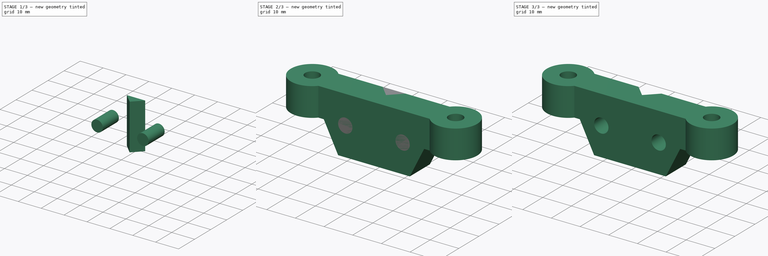
[diagram: build sequence overview — one tinted view per stage of 3, left to right]
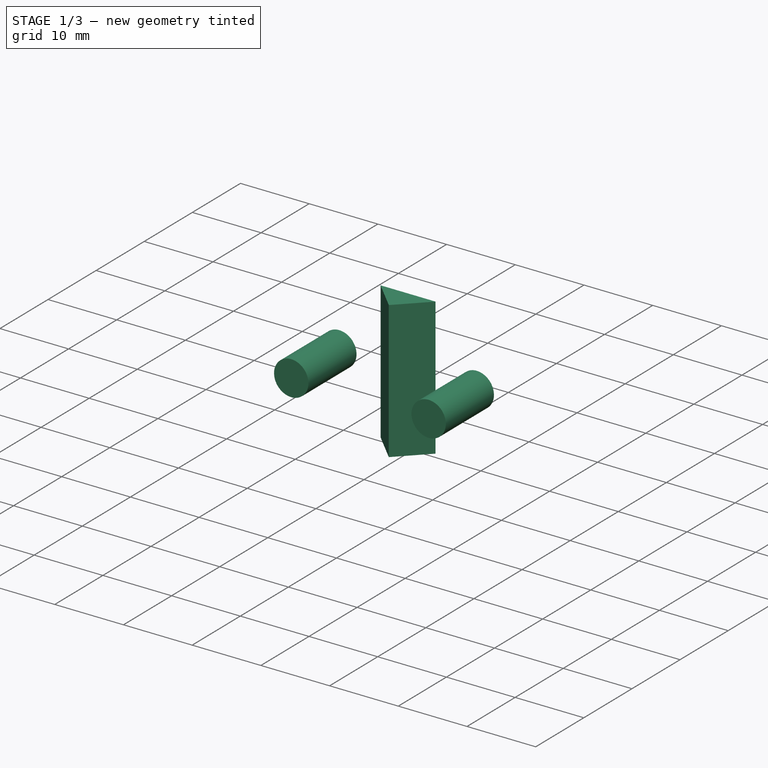
[diagram: stage 1 of 3 — iso view after this stage's code; geometry added in this stage tinted green]
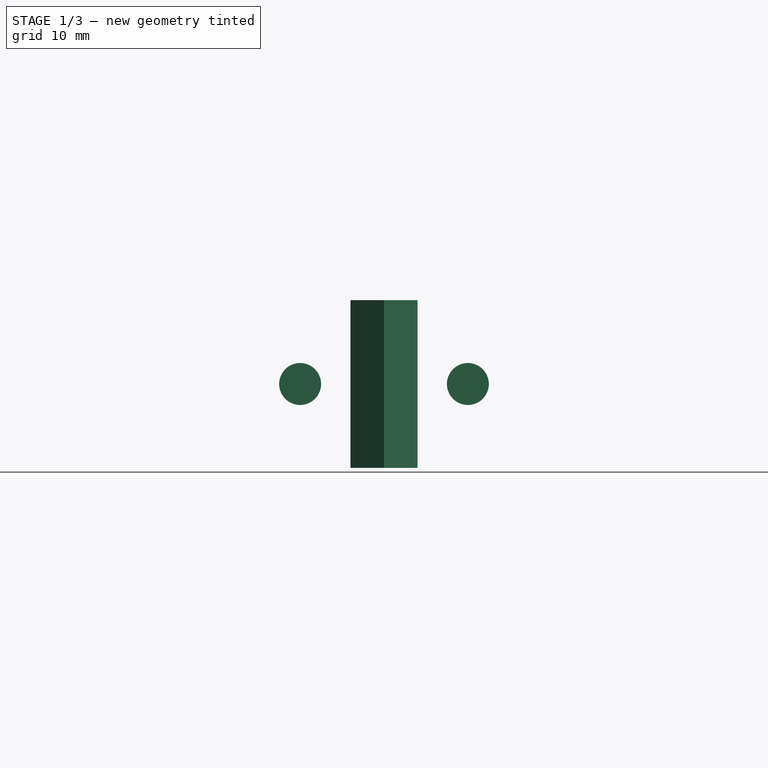
[diagram: stage 1 of 3 — front view after this stage's code; geometry added in this stage tinted green]
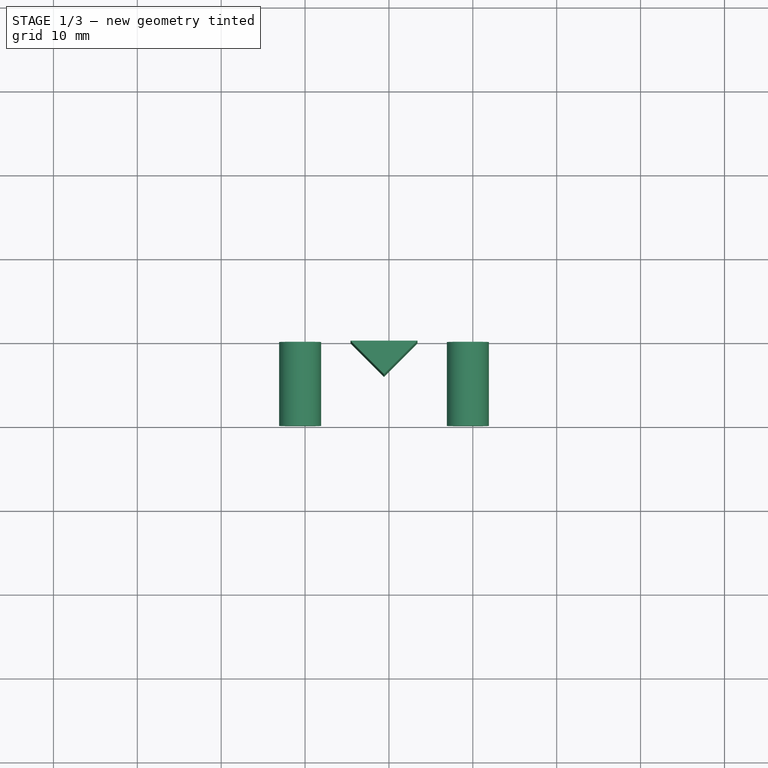
[diagram: stage 1 of 3 — top view after this stage's code; geometry added in this stage tinted green]
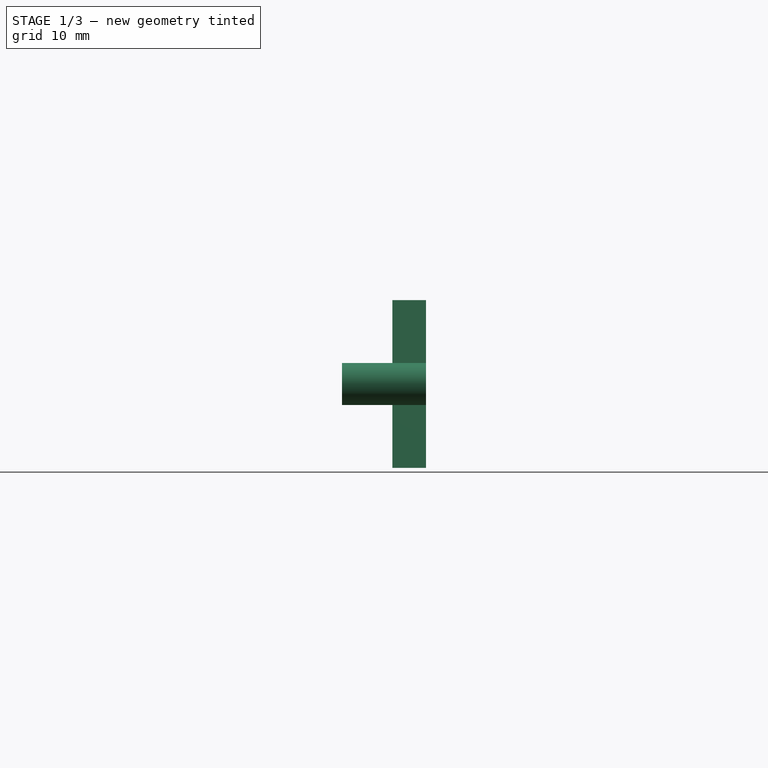
[diagram: stage 1 of 3 — right view after this stage's code; geometry added in this stage tinted green]
FCSTD DOCUMENT  (FreeCAD 1.0R39109 (Git))
Label: pen_attachment_main
License: All rights reserved
LicenseURL: https://en.wikipedia.org/wiki/All_rights_reserved
objects: Sketcher::SketchObject×4, Part::Extrusion×4, Part::Cut×2, Part::MultiFuse×1
note: 15 computed .brp shape members not serialized (recipe doc carries the construction recipe); baked Part::Feature solids carry a one-line shape summary decoded from their .brp

FEATURE [Sketcher::SketchObject] Sketch002
  ArcFitTolerance = 1e-06
  AttachmentOffset = pos=(0,10,0) rot=(0,0,1;0rad)
  AttachmentSupport = -> [Fusion]
  FullyConstrained = true
  MakeInternals = false
  MapMode = 2
  Placement = pos=(0,10,0) rot=(0,0,1;0rad)
  sketch-geometry (3):
    g0: LineSegment StartX=15.41 StartY=0 StartZ=0 EndX=19.41 EndY=-4 EndZ=0
    g1: LineSegment StartX=19.41 StartY=-4 StartZ=0 EndX=23.41 EndY=0 EndZ=0
    g2: LineSegment StartX=15.41 StartY=0 StartZ=0 EndX=23.41 EndY=0 EndZ=0
  constraints (9):
    c: PointOnObject(g0,g-1)
    c: Coincident(g1,g0)
    c: PointOnObject(g1,g-1)
    c: Coincident(g2,g0)
    c: Coincident(g2,g1)
    c: Equal(g0,g1)
    c: Angle(g1,g0) = 1.5708
    c: DistanceY(g0,g-1) = 4
    c: DistanceX(g-1,g0) = 19.41
FEATURE [Part::Extrusion] Extrude002
  Base = -> Sketch002
  Dir = (0,0,1)
  DirMode = 2
  FaceMakerClass = Part::FaceMakerBullseye
  FaceMakerMode = 3
  LengthFwd = 20
  LengthRev = 0
  Solid = true
  Symmetric = true
FEATURE [Sketcher::SketchObject] Sketch003
  ArcFitTolerance = 1e-06
  AttachmentSupport = -> [Cut]
  FullyConstrained = true
  MakeInternals = false
  MapMode = 3
  Placement = pos=(0,0,0) rot=(1,0,0;1.5708rad)
  sketch-geometry (2):
    g0: Circle CenterX=9.41 CenterY=0 CenterZ=0 NormalX=0 NormalY=0 NormalZ=1 AngleXU=0 Radius=2.5
    g1: Circle CenterX=29.41 CenterY=0 CenterZ=0 NormalX=0 NormalY=0 NormalZ=1 AngleXU=0 Radius=2.5
  constraints (6):
    c: Diameter(g0) = 5
    c: Equal(g1,g0)
    c: Horizontal(g0,g1)
    c: DistanceX(g0,g1) = 20
    c: DistanceY(g-1,g0) = 0
    c: DistanceX(g-1,g0) = 9.41
FEATURE [Part::Extrusion] Extrude003
  Base = -> Sketch003
  Dir = (0,-1,2e-16)
  DirMode = 2
  FaceMakerClass = Part::FaceMakerBullseye
  FaceMakerMode = 3
  LengthFwd = 10
  LengthRev = 0
  Reversed = true
  Solid = true
  Symmetric = false
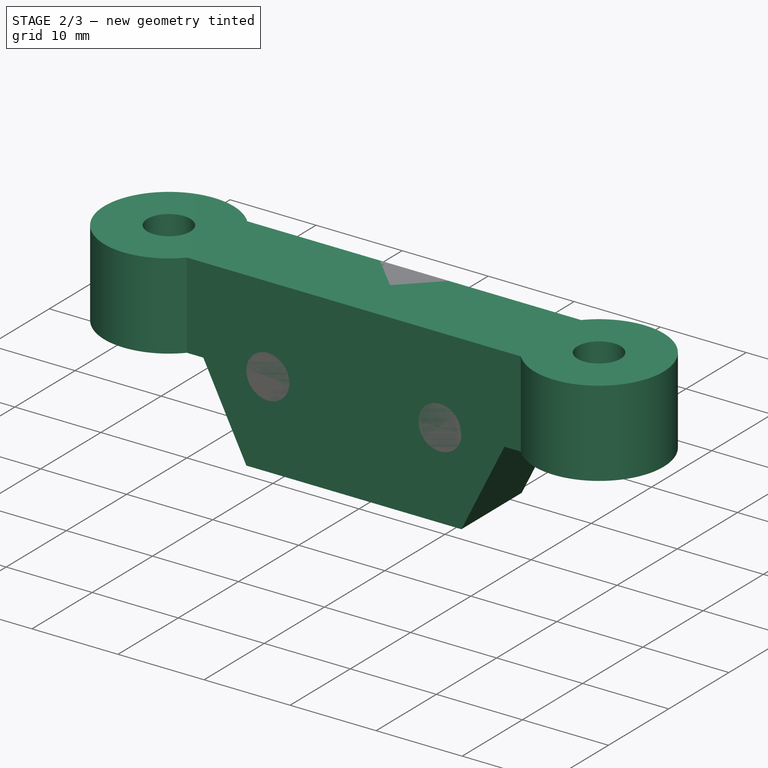
[diagram: stage 2 of 3 — iso view after this stage's code; geometry added in this stage tinted green]
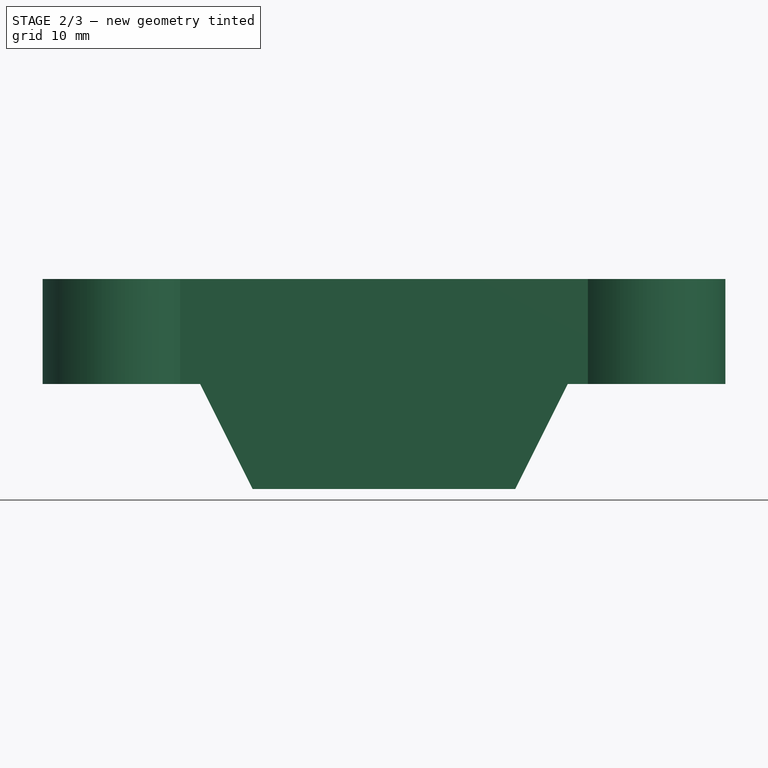
[diagram: stage 2 of 3 — front view after this stage's code; geometry added in this stage tinted green]
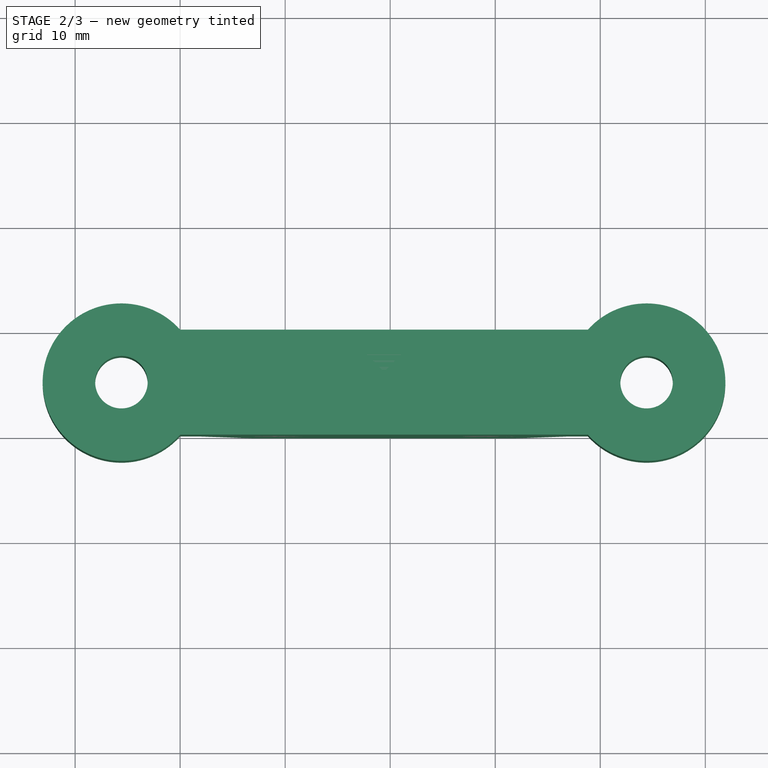
[diagram: stage 2 of 3 — top view after this stage's code; geometry added in this stage tinted green]
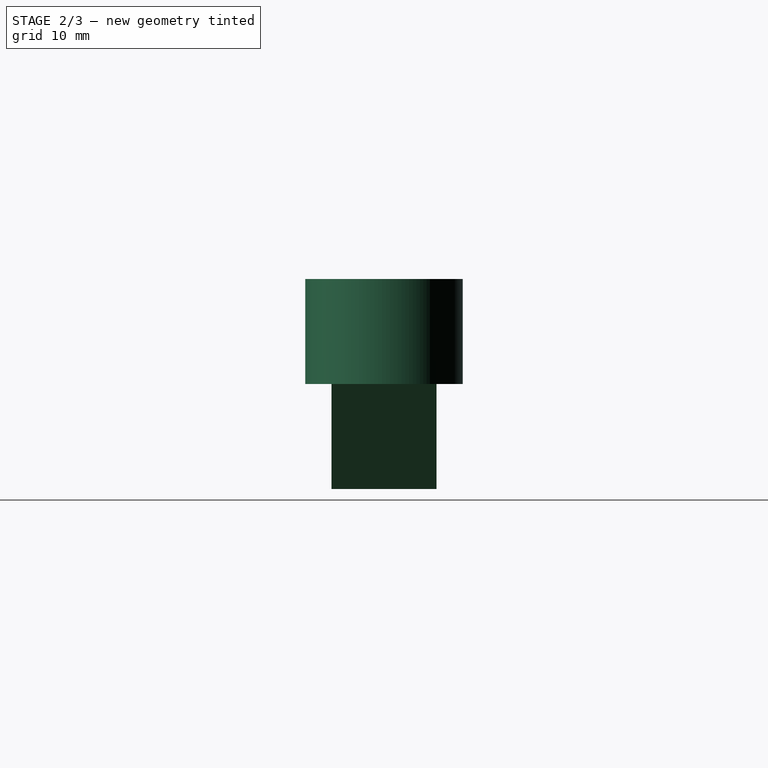
[diagram: stage 2 of 3 — right view after this stage's code; geometry added in this stage tinted green]
FEATURE [Sketcher::SketchObject] Sketch
  ArcFitTolerance = 1e-06
  FullyConstrained = true
  MakeInternals = false
  sketch-geometry (6):
    g0: LineSegment StartX=0 StartY=-9e-16 StartZ=0 EndX=38.8197 EndY=-9e-16 EndZ=0
    g1: LineSegment StartX=38.8197 StartY=10 StartZ=0 EndX=0 EndY=10 EndZ=0
    g2: Circle CenterX=-5.59017 CenterY=5 CenterZ=0 NormalX=0 NormalY=0 NormalZ=1 AngleXU=0 Radius=2.5
    g3: Circle CenterX=44.4098 CenterY=5 CenterZ=0 NormalX=0 NormalY=0 NormalZ=1 AngleXU=0 Radius=2.5
    g4: ArcOfCircle CenterX=-5.59017 CenterY=5 CenterZ=0 NormalX=0 NormalY=0 NormalZ=1 AngleXU=0 Radius=7.5 StartAngle=0.729728 EndAngle=5.55346
    g5: ArcOfCircle CenterX=44.4098 CenterY=5 CenterZ=0 NormalX=0 NormalY=0 NormalZ=1 AngleXU=0 Radius=7.5 StartAngle=3.87132 EndAngle=8.69505
  constraints (17):
    c: Horizontal(g0)
    c: Horizontal(g1)
    c: Diameter(g2) = 5
    c: Diameter(g3) = 5
    c: Diameter(g4) = 15
    c: Coincident(g4,g2)
    c: Diameter(g5) = 15
    c: Coincident(g5,g3)
    c: Coincident(g4,g0)
    c: Coincident(g4,g1)
    c: Coincident(g1,g5)
    c: Coincident(g0,g5)
    c: Equal(g1,g0)
    c: Distance(g0,g1) = 10
    c: DistanceX(g2,g3) = 50
    c: Coincident(g0,g-1)
    c: Vertical(g1,g0)
FEATURE [Part::Extrusion] Extrude
  Base = -> Sketch
  Dir = (0,0,1)
  DirMode = 2
  FaceMakerClass = Part::FaceMakerBullseye
  FaceMakerMode = 3
  LengthFwd = 10
  LengthRev = 0
  Solid = true
  Symmetric = false
FEATURE [Sketcher::SketchObject] Sketch001
  ArcFitTolerance = 1e-06
  AttachmentSupport = -> [Extrude]
  FullyConstrained = true
  MakeInternals = false
  MapMode = 3
  Placement = pos=(0,0,0) rot=(1,0,0;1.5708rad)
  sketch-geometry (4):
    g0: LineSegment StartX=1.91 StartY=0 StartZ=0 EndX=36.91 EndY=0 EndZ=0
    g1: LineSegment StartX=36.91 StartY=0 StartZ=0 EndX=31.91 EndY=-10 EndZ=0
    g2: LineSegment StartX=31.91 StartY=-10 StartZ=0 EndX=6.91 EndY=-10 EndZ=0
    g3: LineSegment StartX=1.91 StartY=0 StartZ=0 EndX=6.91 EndY=-10 EndZ=0
  constraints (12):
    c: PointOnObject(g0,g-1)
    c: PointOnObject(g0,g-1)
    c: Coincident(g1,g0)
    c: Coincident(g2,g1)
    c: Horizontal(g2)
    c: Coincident(g3,g0)
    c: Coincident(g3,g2)
    c: DistanceX(g2,g2) = 25
    c: DistanceX(g0,g0) = 35
    c: Distance(g0,g2) = 10
    c: Equal(g3,g1)
    c: DistanceX(g-1,g0) = 1.91
FEATURE [Part::Extrusion] Extrude001
  Base = -> Sketch001
  Dir = (0,-1,2e-16)
  DirMode = 2
  FaceMakerClass = Part::FaceMakerBullseye
  FaceMakerMode = 3
  LengthFwd = 10
  LengthRev = 0
  Reversed = true
  Solid = true
  Symmetric = false
FEATURE [Part::MultiFuse] Fusion
  Shapes = -> [Extrude,Extrude001]
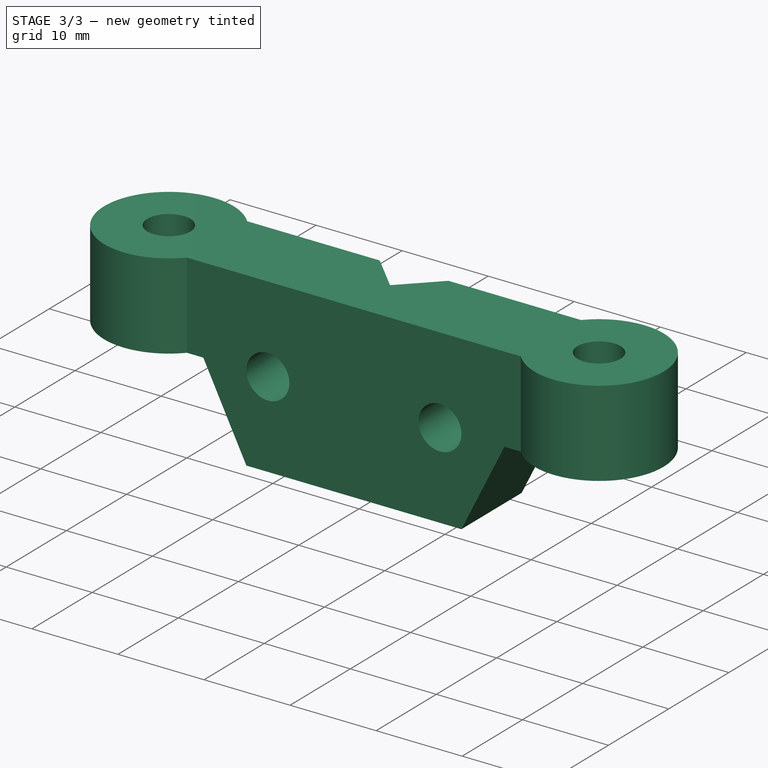
[diagram: stage 3 of 3 — iso view after this stage's code; geometry added in this stage tinted green]
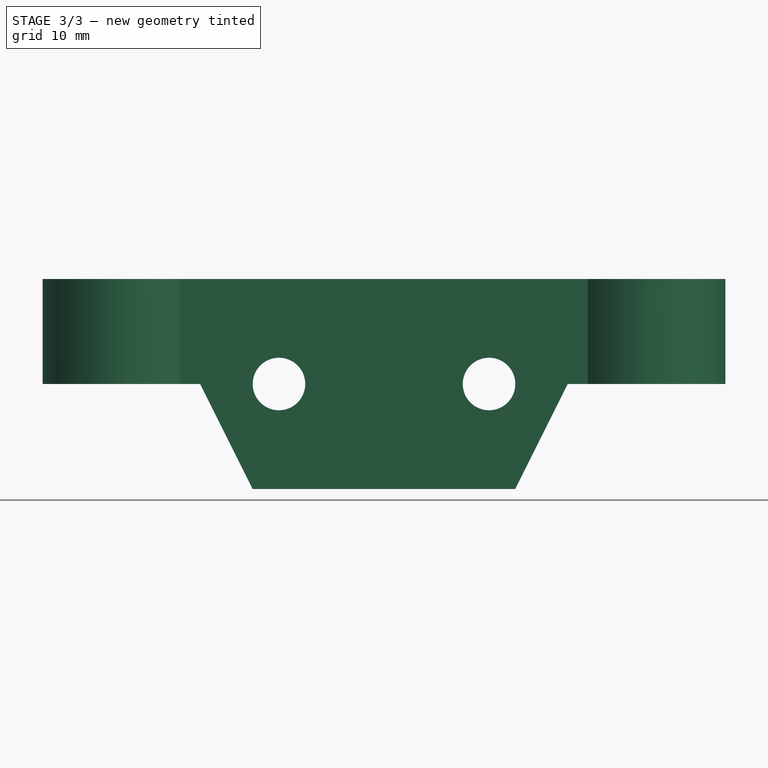
[diagram: stage 3 of 3 — front view after this stage's code; geometry added in this stage tinted green]
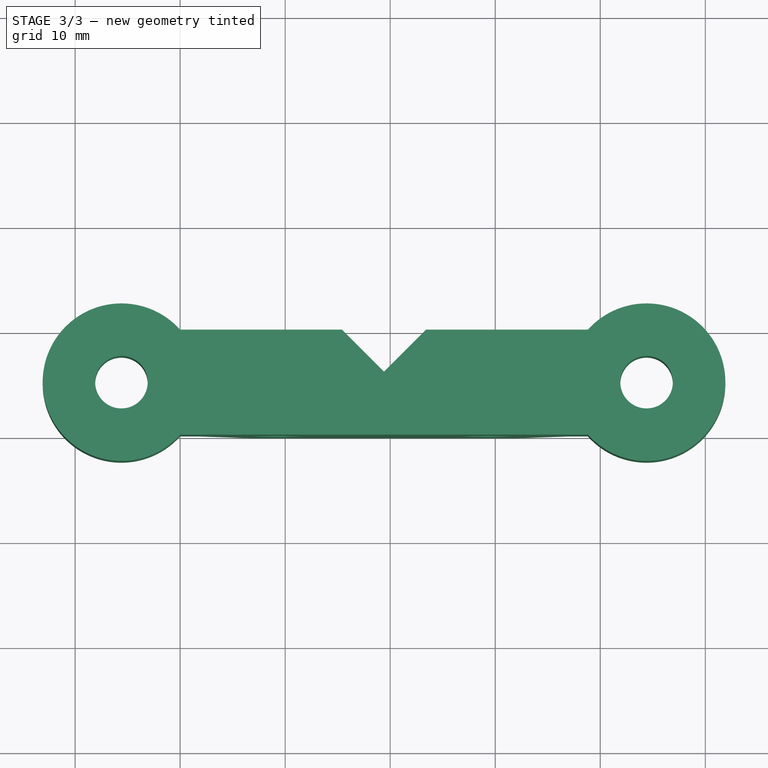
[diagram: stage 3 of 3 — top view after this stage's code; geometry added in this stage tinted green]
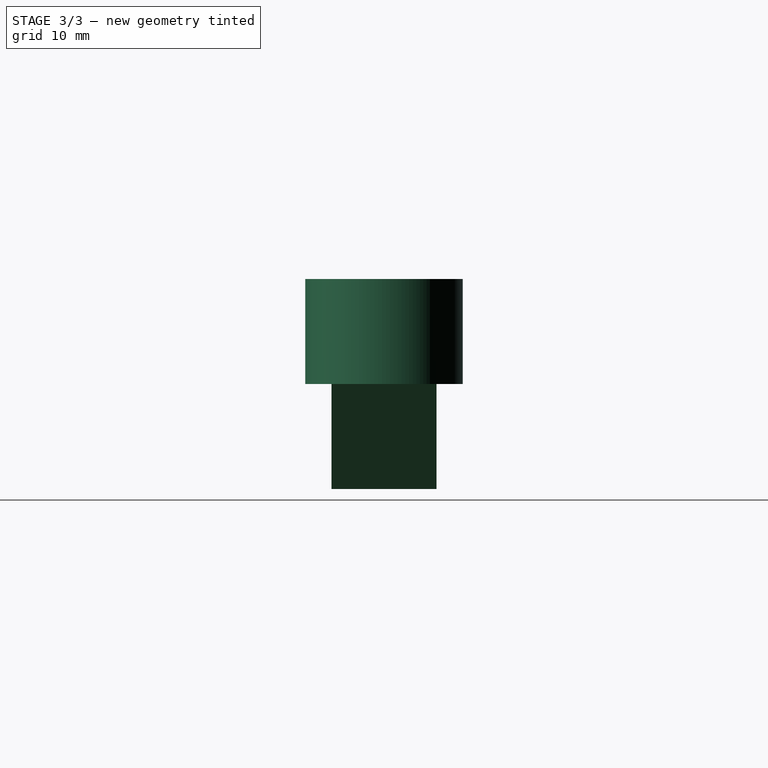
[diagram: stage 3 of 3 — right view after this stage's code; geometry added in this stage tinted green]
FEATURE [Part::Cut] Cut
  Base = -> Fusion
  Tool = -> Extrude002
FEATURE [Part::Cut] Cut001
  Base = -> Cut
  Tool = -> Extrude003
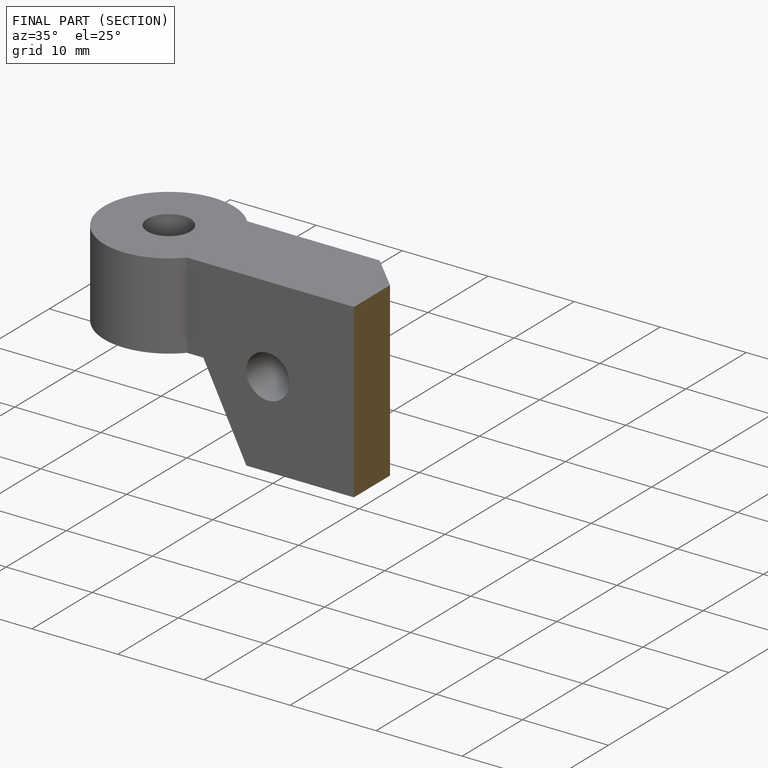
[diagram: finished part — half-section view (interior)]
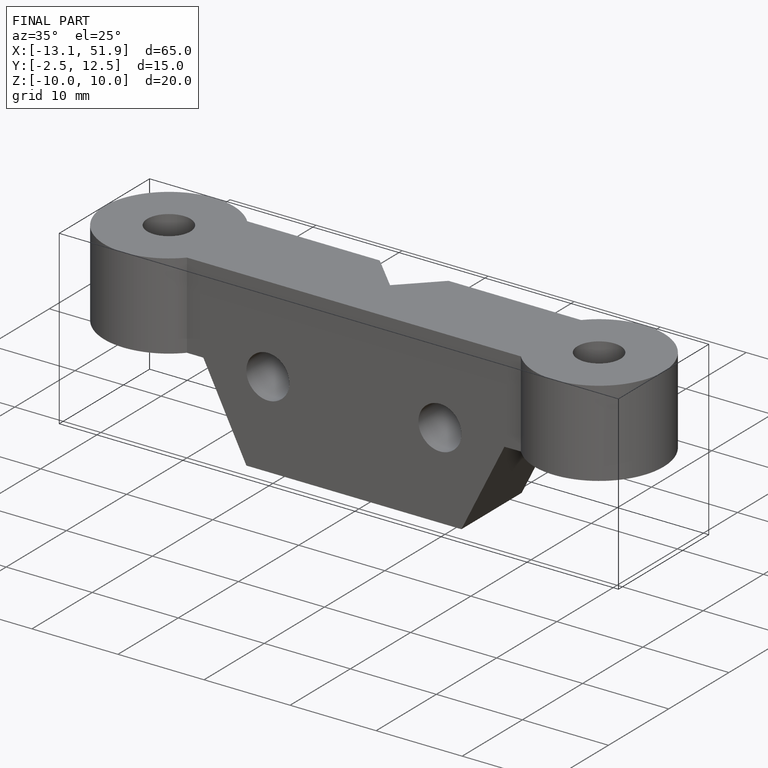
[diagram: finished part — iso view with bounding-box wireframe]
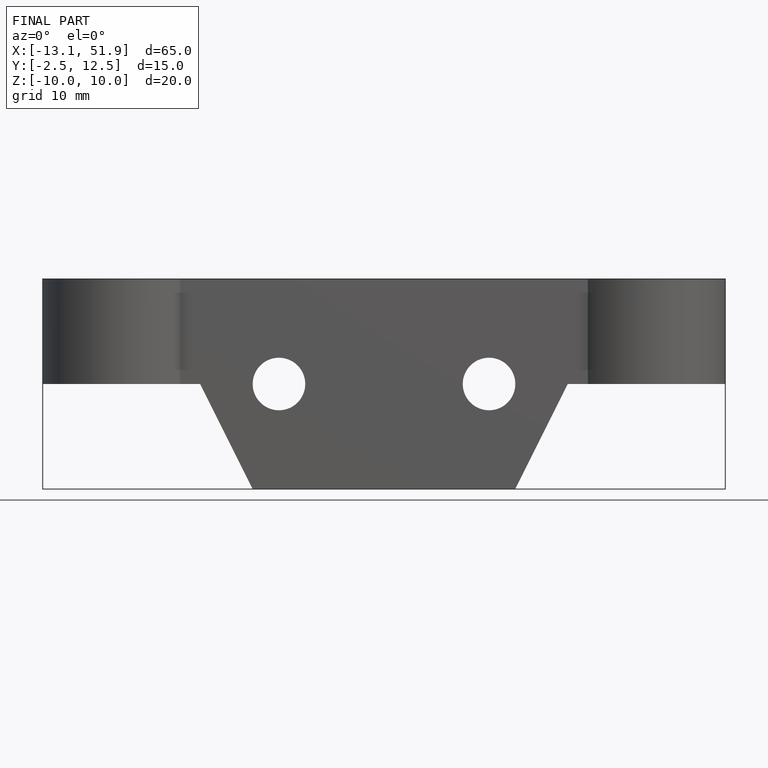
[diagram: finished part — front view with bounding-box wireframe]
